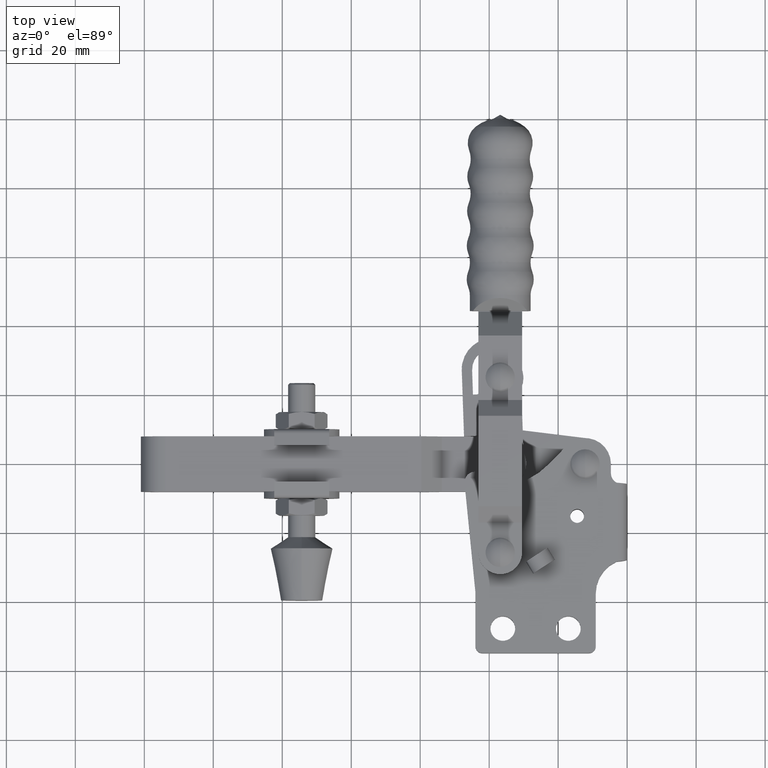
[diagram: clean part render]
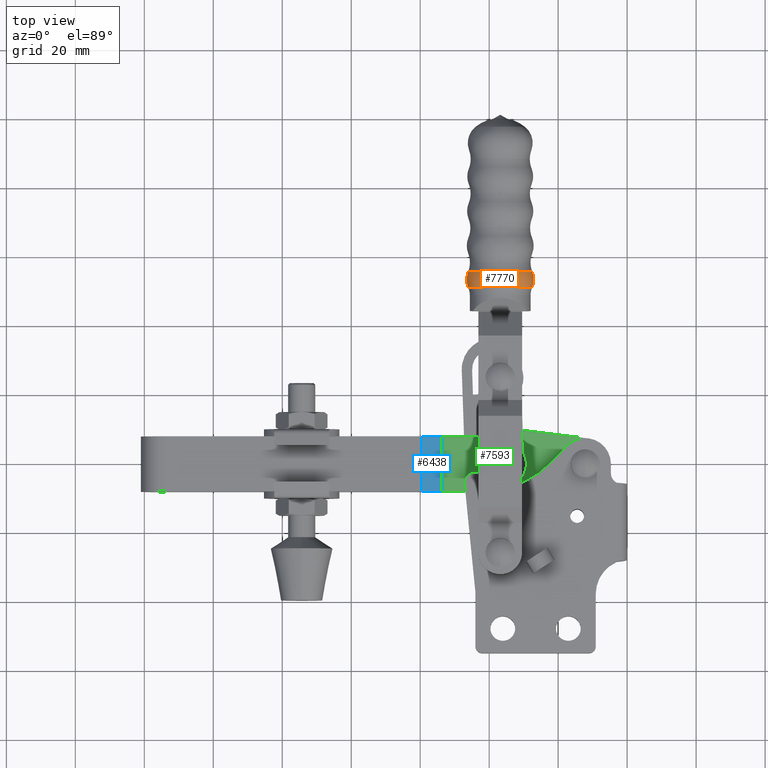
[diagram: same view with three faces highlighted in distinct colors, each labeled with its STEP entity id]
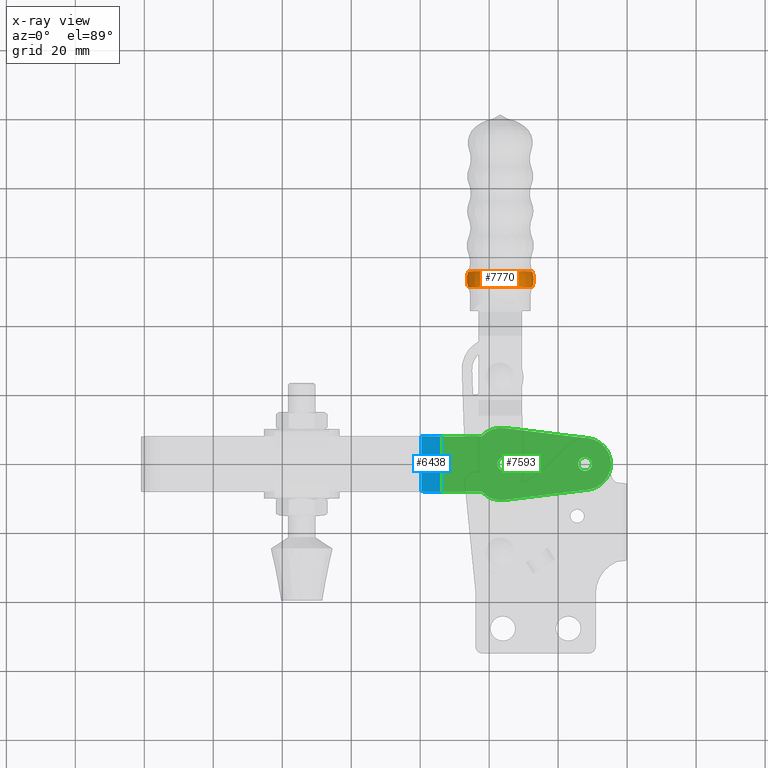
[diagram: x-ray of the same camera — body ghosted, the three highlighted faces saturated]
A machine part, top view with three faces highlighted in distinct colors.
The next image is the same camera in x-ray (body ghosted, the three faces saturated) — at least one of them is partly hidden behind the body in this view.
Their STEP definitions:

[orange] entity #7770 — the highlighted toroidal blend (fillet) surface has major radius 3.7204 mm and minor (blend) radius 6 mm.
#6 = ORIENTED_EDGE ( 'NONE', *, *, #4113, .F. ) ;
#67 = CIRCLE ( 'NONE', #2832, 5.999999999999956500 ) ;
#202 = VERTEX_POINT ( 'NONE', #4140 ) ;
#206 = CARTESIAN_POINT ( 'NONE',  ( -36.80000000000023900, 95.59518003022576200, -0.09999999999998945800 ) ) ;
#364 = DIRECTION ( 'NONE',  ( -1.224646799147353200E-016, -1.246487069854729000E-032, 1.000000000000000000 ) ) ;
#540 = CARTESIAN_POINT ( 'NONE',  ( -46.10422334448541900, 95.59518003022576200, -0.09999999999998945800 ) ) ;
#731 = EDGE_CURVE ( 'NONE', #1030, #9462, #7596, .T. ) ;
#931 = CIRCLE ( 'NONE', #11139, 5.999999999999956500 ) ;
#1030 = VERTEX_POINT ( 'NONE', #540 ) ;
#1149 = DIRECTION ( 'NONE',  ( -1.000000000000000000, 0.0000000000000000000, 0.0000000000000000000 ) ) ;
#1521 = CARTESIAN_POINT ( 'NONE',  ( -40.52035693382953200, 93.39963091714528800, -0.09999999999998945800 ) ) ;
#1606 = CARTESIAN_POINT ( 'NONE',  ( -36.80000000000023900, 91.10825214997900900, -0.09999999999998945800 ) ) ;
#1897 = TOROIDAL_SURFACE ( 'NONE', #2658, 3.720356933829293200, 5.999999999999956500 ) ;
#2094 = CARTESIAN_POINT ( 'NONE',  ( -27.49577665551507300, 95.59518003022576200, -0.09999999999998833400 ) ) ;
#2473 = ORIENTED_EDGE ( 'NONE', *, *, #6395, .T. ) ;
#2487 = DIRECTION ( 'NONE',  ( -1.000000000000000000, 0.0000000000000000000, 0.0000000000000000000 ) ) ;
#2506 = CARTESIAN_POINT ( 'NONE',  ( -36.80000000000023900, 93.39963091714528800, -0.09999999999998945800 ) ) ;
#2562 = DIRECTION ( 'NONE',  ( -1.000000000000000000, 0.0000000000000000000, 0.0000000000000000000 ) ) ;
#2658 = AXIS2_PLACEMENT_3D ( 'NONE', #2506, #5429, #12132 ) ;
#2791 = FACE_OUTER_BOUND ( 'NONE', #12000, .T. ) ;
#2832 = AXIS2_PLACEMENT_3D ( 'NONE', #6073, #364, #7040 ) ;
#4113 = EDGE_CURVE ( 'NONE', #202, #1030, #931, .T. ) ;
#4140 = CARTESIAN_POINT ( 'NONE',  ( -46.06558761842495600, 91.10825214997900900, -0.09999999999998945800 ) ) ;
#5429 = DIRECTION ( 'NONE',  ( -1.017833934423036900E-016, 1.000000000000000000, -0.0000000000000000000 ) ) ;
#6073 = CARTESIAN_POINT ( 'NONE',  ( -33.07964306617095200, 93.39963091714528800, -0.09999999999998900000 ) ) ;
#6395 = EDGE_CURVE ( 'NONE', #202, #7558, #9009, .T. ) ;
#6877 = DIRECTION ( 'NONE',  ( -1.017833934423036900E-016, 1.000000000000000000, -0.0000000000000000000 ) ) ;
#7040 = DIRECTION ( 'NONE',  ( 1.000000000000000000, 0.0000000000000000000, 1.219727444046201400E-016 ) ) ;
#7558 = VERTEX_POINT ( 'NONE', #8964 ) ;
#7596 = CIRCLE ( 'NONE', #12240, 9.304223344485169600 ) ;
#7770 = ADVANCED_FACE ( 'NONE', ( #2791 ), #1897, .T. ) ;
#8238 = DIRECTION ( 'NONE',  ( 0.0000000000000000000, -0.0000000000000000000, -1.000000000000000000 ) ) ;
#8330 = DIRECTION ( 'NONE',  ( -1.017833934423036900E-016, 1.000000000000000000, -0.0000000000000000000 ) ) ;
#8964 = CARTESIAN_POINT ( 'NONE',  ( -27.53441238157552800, 91.10825214997900900, -0.09999999999998832000 ) ) ;
#9009 = CIRCLE ( 'NONE', #11018, 9.265587618424712300 ) ;
#9428 = ORIENTED_EDGE ( 'NONE', *, *, #9834, .T. ) ;
#9462 = VERTEX_POINT ( 'NONE', #2094 ) ;
#9834 = EDGE_CURVE ( 'NONE', #7558, #9462, #67, .T. ) ;
#11018 = AXIS2_PLACEMENT_3D ( 'NONE', #1606, #8330, #2562 ) ;
#11139 = AXIS2_PLACEMENT_3D ( 'NONE', #1521, #8238, #2487 ) ;
#11489 = ORIENTED_EDGE ( 'NONE', *, *, #731, .F. ) ;
#12000 = EDGE_LOOP ( 'NONE', ( #2473, #9428, #11489, #6 ) ) ;
#12132 = DIRECTION ( 'NONE',  ( -1.000000000000000000, -1.017833934423036900E-016, 0.0000000000000000000 ) ) ;
#12240 = AXIS2_PLACEMENT_3D ( 'NONE', #206, #6877, #1149 ) ;

[blue] entity #6438 — the highlighted planar face has unit normal (-0.5689, 0, -0.8224).
#703 = EDGE_LOOP ( 'NONE', ( #5776, #5069, #2581, #11402 ) ) ;
#724 = DIRECTION ( 'NONE',  ( 0.8224388460565610300, -1.860948410379638000E-015, -0.5688535351891137500 ) ) ;
#1522 = CARTESIAN_POINT ( 'NONE',  ( -59.71358415852468200, 47.80000000000014600, 7.149999999999992400 ) ) ;
#1860 = CARTESIAN_POINT ( 'NONE',  ( -53.71358415852445500, 29.30000000000005000, 2.999999999999863700 ) ) ;
#1896 = DIRECTION ( 'NONE',  ( 2.264898338322218800E-015, 1.000000000000000000, 3.150134990220453800E-018 ) ) ;
#2161 = DIRECTION ( 'NONE',  ( 2.264898338322218800E-015, 1.000000000000000000, 3.150134990220453800E-018 ) ) ;
#2352 = CARTESIAN_POINT ( 'NONE',  ( -59.71358415852476000, 31.80000000000000800, 7.150000000000229500 ) ) ;
#2546 = VERTEX_POINT ( 'NONE', #10721 ) ;
#2581 = ORIENTED_EDGE ( 'NONE', *, *, #5689, .F. ) ;
#2750 = LINE ( 'NONE', #1522, #5015 ) ;
#3343 = VERTEX_POINT ( 'NONE', #11751 ) ;
#3394 = VECTOR ( 'NONE', #2161, 1000.000000000000000 ) ;
#4188 = VECTOR ( 'NONE', #6842, 1000.000000000000000 ) ;
#4329 = AXIS2_PLACEMENT_3D ( 'NONE', #9299, #6397, #724 ) ;
#4553 = CARTESIAN_POINT ( 'NONE',  ( -59.71358415852473200, 47.80000000000014600, 7.150000000000229500 ) ) ;
#5015 = VECTOR ( 'NONE', #9218, 1000.000000000000000 ) ;
#5056 = VECTOR ( 'NONE', #1896, 1000.000000000000000 ) ;
#5069 = ORIENTED_EDGE ( 'NONE', *, *, #8181, .F. ) ;
#5213 = FACE_OUTER_BOUND ( 'NONE', #703, .T. ) ;
#5689 = EDGE_CURVE ( 'NONE', #2546, #11067, #9317, .T. ) ;
#5776 = ORIENTED_EDGE ( 'NONE', *, *, #9973, .F. ) ;
#5885 = CARTESIAN_POINT ( 'NONE',  ( -59.71358415852474600, 31.80000000000000800, 7.150000000000010100 ) ) ;
#6397 = DIRECTION ( 'NONE',  ( -0.5688535351891137500, 1.290986219984822700E-015, -0.8224388460565610300 ) ) ;
#6438 = ADVANCED_FACE ( 'NONE', ( #5213 ), #6448, .F. ) ;
#6448 = PLANE ( 'NONE',  #4329 ) ;
#6842 = DIRECTION ( 'NONE',  ( -0.8224388460565610300, -1.027402259397038600E-016, 0.5688535351891137500 ) ) ;
#7613 = LINE ( 'NONE', #1860, #5056 ) ;
#8181 = EDGE_CURVE ( 'NONE', #11067, #9477, #8838, .T. ) ;
#8594 = EDGE_CURVE ( 'NONE', #2546, #3343, #7613, .T. ) ;
#8838 = LINE ( 'NONE', #8896, #3394 ) ;
#8896 = CARTESIAN_POINT ( 'NONE',  ( -59.71358415852474600, 29.30000000000006500, 7.150000000000008300 ) ) ;
#9218 = DIRECTION ( 'NONE',  ( 0.8224388460565610300, -3.355373218166783600E-015, -0.5688535351891137500 ) ) ;
#9299 = CARTESIAN_POINT ( 'NONE',  ( -59.71358415852474600, 29.30000000000006500, 7.150000000000008300 ) ) ;
#9317 = LINE ( 'NONE', #5885, #4188 ) ;
#9477 = VERTEX_POINT ( 'NONE', #4553 ) ;
#9973 = EDGE_CURVE ( 'NONE', #9477, #3343, #2750, .T. ) ;
#10721 = CARTESIAN_POINT ( 'NONE',  ( -53.71358415852445500, 31.80000000000000800, 2.999999999999863700 ) ) ;
#11067 = VERTEX_POINT ( 'NONE', #2352 ) ;
#11402 = ORIENTED_EDGE ( 'NONE', *, *, #8594, .T. ) ;
#11751 = CARTESIAN_POINT ( 'NONE',  ( -53.71358415852441200, 47.80000000000012500, 2.999999999999863700 ) ) ;

[green] entity #7593 — the highlighted planar face has unit normal (0, 0, -1).
#132 = DIRECTION ( 'NONE',  ( 0.9925261778147186400, -0.1220319071083695300, 6.834952235825854500E-015 ) ) ;
#258 = EDGE_LOOP ( 'NONE', ( #6495, #7268 ) ) ;
#299 = CARTESIAN_POINT ( 'NONE',  ( -35.68476069668722100, 29.35605366638959500, 3.000000000000055100 ) ) ;
#320 = ORIENTED_EDGE ( 'NONE', *, *, #8184, .T. ) ;
#356 = LINE ( 'NONE', #6440, #7717 ) ;
#407 = VERTEX_POINT ( 'NONE', #3452 ) ;
#569 = ORIENTED_EDGE ( 'NONE', *, *, #3531, .T. ) ;
#734 = CARTESIAN_POINT ( 'NONE',  ( -4.700000000000008200, 39.79999999999993300, 3.000000000000200700 ) ) ;
#864 = LINE ( 'NONE', #2957, #10772 ) ;
#1235 = CARTESIAN_POINT ( 'NONE',  ( -12.19999999999998900, 39.79999999999994700, 3.000000000000149200 ) ) ;
#1302 = FACE_BOUND ( 'NONE', #258, .T. ) ;
#1440 = LINE ( 'NONE', #6363, #3385 ) ;
#1533 = EDGE_CURVE ( 'NONE', #3343, #8870, #10324, .T. ) ;
#1613 = AXIS2_PLACEMENT_3D ( 'NONE', #3208, #4182, #10895 ) ;
#1670 = EDGE_CURVE ( 'NONE', #7920, #11570, #1440, .T. ) ;
#1735 = CARTESIAN_POINT ( 'NONE',  ( -12.19999999999998900, 39.79999999999994700, 3.000000000000149200 ) ) ;
#1860 = CARTESIAN_POINT ( 'NONE',  ( -53.71358415852445500, 29.30000000000005000, 2.999999999999863700 ) ) ;
#1895 = DIRECTION ( 'NONE',  ( -0.9925261778147190800, -0.1220319071083650300, -6.835721069786865900E-015 ) ) ;
#1896 = DIRECTION ( 'NONE',  ( 2.264898338322218800E-015, 1.000000000000000000, 3.150134990220453800E-018 ) ) ;
#1944 = CARTESIAN_POINT ( 'NONE',  ( -36.59999999999998000, 36.79999999999999700, 2.999999999999980900 ) ) ;
#1995 = EDGE_CURVE ( 'NONE', #2808, #7920, #9103, .T. ) ;
#2016 = EDGE_CURVE ( 'NONE', #11570, #11504, #6515, .T. ) ;
#2200 = DIRECTION ( 'NONE',  ( 1.000000000000000000, -3.469446951953614200E-015, 6.938893903907228400E-015 ) ) ;
#2546 = VERTEX_POINT ( 'NONE', #10721 ) ;
#2689 = DIRECTION ( 'NONE',  ( 1.000000000000000000, -1.850371707708599100E-015, 6.881069788041352700E-015 ) ) ;
#2709 = CARTESIAN_POINT ( 'NONE',  ( -10.19999999999998900, 39.79999999999994000, 3.000000000000163000 ) ) ;
#2808 = VERTEX_POINT ( 'NONE', #734 ) ;
#2904 = DIRECTION ( 'NONE',  ( 1.000000000000000000, -1.850371707708590800E-015, 6.881069788041322700E-015 ) ) ;
#2957 = CARTESIAN_POINT ( 'NONE',  ( -50.90837487469222800, 52.11570217516838700, 2.999999999999882300 ) ) ;
#3052 = DIRECTION ( 'NONE',  ( 1.000000000000000000, -4.081963296954256900E-015, 6.886807426939579500E-015 ) ) ;
#3114 = CARTESIAN_POINT ( 'NONE',  ( -14.19999999999998900, 39.79999999999995500, 3.000000000000135400 ) ) ;
#3208 = CARTESIAN_POINT ( 'NONE',  ( -53.71358415852445500, 29.30000000000005000, 2.999999999999863700 ) ) ;
#3217 = EDGE_CURVE ( 'NONE', #407, #6620, #3921, .T. ) ;
#3316 = VERTEX_POINT ( 'NONE', #3114 ) ;
#3332 = ORIENTED_EDGE ( 'NONE', *, *, #11840, .F. ) ;
#3343 = VERTEX_POINT ( 'NONE', #11751 ) ;
#3385 = VECTOR ( 'NONE', #1895, 1000.000000000000100 ) ;
#3452 = CARTESIAN_POINT ( 'NONE',  ( -33.59999999999996600, 39.79999999999999700, 3.000000000000002200 ) ) ;
#3531 = EDGE_CURVE ( 'NONE', #3316, #9527, #12006, .T. ) ;
#3910 = ORIENTED_EDGE ( 'NONE', *, *, #1533, .F. ) ;
#3921 = CIRCLE ( 'NONE', #10820, 2.000000000000001800 ) ;
#4082 = CARTESIAN_POINT ( 'NONE',  ( -42.19016994374941000, 47.80000000000004700, 2.999999999999913400 ) ) ;
#4112 = AXIS2_PLACEMENT_3D ( 'NONE', #1235, #7946, #2200 ) ;
#4173 = EDGE_LOOP ( 'NONE', ( #320, #569 ) ) ;
#4182 = DIRECTION ( 'NONE',  ( 6.886807426939579500E-015, 3.150134990204894600E-018, -1.000000000000000000 ) ) ;
#4708 = DIRECTION ( 'NONE',  ( 6.886807426939579500E-015, 3.150134990204894600E-018, -1.000000000000000000 ) ) ;
#4799 = DIRECTION ( 'NONE',  ( 6.886807426939579500E-015, 3.150134990204894600E-018, -1.000000000000000000 ) ) ;
#4869 = ORIENTED_EDGE ( 'NONE', *, *, #11285, .F. ) ;
#4923 = CIRCLE ( 'NONE', #8536, 2.000000000000001800 ) ;
#4946 = DIRECTION ( 'NONE',  ( 6.886807426939579500E-015, 3.150134990204894600E-018, -1.000000000000000000 ) ) ;
#4992 = ORIENTED_EDGE ( 'NONE', *, *, #6477, .F. ) ;
#4999 = CARTESIAN_POINT ( 'NONE',  ( -42.19016994374949500, 31.80000000000000800, 3.000000000000014700 ) ) ;
#5008 = AXIS2_PLACEMENT_3D ( 'NONE', #1735, #8458, #2689 ) ;
#5056 = VECTOR ( 'NONE', #1896, 1000.000000000000000 ) ;
#5283 = CARTESIAN_POINT ( 'NONE',  ( -12.19999999999998900, 39.79999999999994700, 3.000000000000149200 ) ) ;
#5393 = AXIS2_PLACEMENT_3D ( 'NONE', #10558, #4799, #11512 ) ;
#5511 = DIRECTION ( 'NONE',  ( 6.886807426939579500E-015, 3.150134990204894600E-018, -1.000000000000000000 ) ) ;
#5578 = ORIENTED_EDGE ( 'NONE', *, *, #1670, .F. ) ;
#5816 = ORIENTED_EDGE ( 'NONE', *, *, #8594, .F. ) ;
#5910 = EDGE_LOOP ( 'NONE', ( #3910, #5816, #4869, #9363, #5578, #9018, #4992, #9883, #3332 ) ) ;
#5944 = CIRCLE ( 'NONE', #4112, 2.000000000000000000 ) ;
#6051 = AXIS2_PLACEMENT_3D ( 'NONE', #5283, #11985, #6223 ) ;
#6223 = DIRECTION ( 'NONE',  ( 1.000000000000000000, -3.469446951953614200E-015, 6.938893903907228400E-015 ) ) ;
#6363 = CARTESIAN_POINT ( 'NONE',  ( -53.45189198370015000, 27.17157031142903300, 2.999999999999865000 ) ) ;
#6382 = FACE_BOUND ( 'NONE', #4173, .T. ) ;
#6440 = CARTESIAN_POINT ( 'NONE',  ( -53.71358415852445500, 31.80000000000000800, 2.999999999999863700 ) ) ;
#6477 = EDGE_CURVE ( 'NONE', #11543, #2808, #7477, .T. ) ;
#6495 = ORIENTED_EDGE ( 'NONE', *, *, #3217, .T. ) ;
#6515 = CIRCLE ( 'NONE', #6677, 7.500000000000013300 ) ;
#6620 = VERTEX_POINT ( 'NONE', #9543 ) ;
#6677 = AXIS2_PLACEMENT_3D ( 'NONE', #1944, #8679, #2904 ) ;
#6853 = CARTESIAN_POINT ( 'NONE',  ( -53.71358415852438400, 47.80000000000012500, 2.999999999999863700 ) ) ;
#7268 = ORIENTED_EDGE ( 'NONE', *, *, #7397, .T. ) ;
#7397 = EDGE_CURVE ( 'NONE', #6620, #407, #4923, .T. ) ;
#7448 = EDGE_CURVE ( 'NONE', #9318, #11543, #864, .T. ) ;
#7477 = CIRCLE ( 'NONE', #5008, 7.499999999999980500 ) ;
#7534 = AXIS2_PLACEMENT_3D ( 'NONE', #10689, #4946, #11639 ) ;
#7593 = ADVANCED_FACE ( 'NONE', ( #1302, #6382, #8994 ), #9003, .F. ) ;
#7613 = LINE ( 'NONE', #1860, #5056 ) ;
#7717 = VECTOR ( 'NONE', #10292, 1000.000000000000000 ) ;
#7766 = VECTOR ( 'NONE', #3052, 1000.000000000000000 ) ;
#7920 = VERTEX_POINT ( 'NONE', #10483 ) ;
#7946 = DIRECTION ( 'NONE',  ( 6.886807426939579500E-015, 3.150134990204894600E-018, -1.000000000000000000 ) ) ;
#8184 = EDGE_CURVE ( 'NONE', #9527, #3316, #5944, .T. ) ;
#8442 = CIRCLE ( 'NONE', #7534, 7.500000000000007100 ) ;
#8458 = DIRECTION ( 'NONE',  ( 6.886807426939579500E-015, 3.150134990204894600E-018, -1.000000000000000000 ) ) ;
#8536 = AXIS2_PLACEMENT_3D ( 'NONE', #10456, #4708, #11404 ) ;
#8577 = CARTESIAN_POINT ( 'NONE',  ( -35.68476069668716400, 50.24394633361034600, 3.000000000000024000 ) ) ;
#8594 = EDGE_CURVE ( 'NONE', #2546, #3343, #7613, .T. ) ;
#8679 = DIRECTION ( 'NONE',  ( 6.886807426939579500E-015, 3.150134990204894600E-018, -1.000000000000000000 ) ) ;
#8870 = VERTEX_POINT ( 'NONE', #4082 ) ;
#8994 = FACE_OUTER_BOUND ( 'NONE', #5910, .T. ) ;
#9003 = PLANE ( 'NONE',  #1613 ) ;
#9018 = ORIENTED_EDGE ( 'NONE', *, *, #1995, .F. ) ;
#9103 = CIRCLE ( 'NONE', #5393, 7.499999999999980500 ) ;
#9318 = VERTEX_POINT ( 'NONE', #8577 ) ;
#9363 = ORIENTED_EDGE ( 'NONE', *, *, #2016, .F. ) ;
#9527 = VERTEX_POINT ( 'NONE', #2709 ) ;
#9543 = CARTESIAN_POINT ( 'NONE',  ( -37.59999999999996600, 39.80000000000001100, 2.999999999999974700 ) ) ;
#9883 = ORIENTED_EDGE ( 'NONE', *, *, #7448, .F. ) ;
#10292 = DIRECTION ( 'NONE',  ( -1.000000000000000000, -1.227425735034547700E-016, -6.886807426939579500E-015 ) ) ;
#10324 = LINE ( 'NONE', #6853, #7766 ) ;
#10456 = CARTESIAN_POINT ( 'NONE',  ( -35.59999999999996600, 39.80000000000000400, 2.999999999999988500 ) ) ;
#10483 = CARTESIAN_POINT ( 'NONE',  ( -11.28476069668722700, 32.35605366638954900, 3.000000000000155400 ) ) ;
#10558 = CARTESIAN_POINT ( 'NONE',  ( -12.19999999999998900, 39.79999999999994700, 3.000000000000149200 ) ) ;
#10689 = CARTESIAN_POINT ( 'NONE',  ( -36.59999999999996600, 42.80000000000000400, 2.999999999999980900 ) ) ;
#10721 = CARTESIAN_POINT ( 'NONE',  ( -53.71358415852445500, 31.80000000000000800, 2.999999999999863700 ) ) ;
#10772 = VECTOR ( 'NONE', #132, 999.9999999999998900 ) ;
#10820 = AXIS2_PLACEMENT_3D ( 'NONE', #11276, #5511, #12231 ) ;
#10895 = DIRECTION ( 'NONE',  ( 1.000000000000000000, -2.264898338322218800E-015, 6.886807426939579500E-015 ) ) ;
#11276 = CARTESIAN_POINT ( 'NONE',  ( -35.59999999999996600, 39.80000000000000400, 2.999999999999988500 ) ) ;
#11285 = EDGE_CURVE ( 'NONE', #11504, #2546, #356, .T. ) ;
#11404 = DIRECTION ( 'NONE',  ( 1.000000000000000000, -3.469446951953611000E-015, 6.938893903907222100E-015 ) ) ;
#11504 = VERTEX_POINT ( 'NONE', #4999 ) ;
#11512 = DIRECTION ( 'NONE',  ( 1.000000000000000000, -1.850371707708599100E-015, 6.881069788041352700E-015 ) ) ;
#11543 = VERTEX_POINT ( 'NONE', #11732 ) ;
#11570 = VERTEX_POINT ( 'NONE', #299 ) ;
#11639 = DIRECTION ( 'NONE',  ( 1.000000000000000000, -1.850371707708592400E-015, 6.881069788041328200E-015 ) ) ;
#11732 = CARTESIAN_POINT ( 'NONE',  ( -11.28476069668719500, 47.24394633361028900, 3.000000000000091500 ) ) ;
#11751 = CARTESIAN_POINT ( 'NONE',  ( -53.71358415852441200, 47.80000000000012500, 2.999999999999863700 ) ) ;
#11840 = EDGE_CURVE ( 'NONE', #8870, #9318, #8442, .T. ) ;
#11985 = DIRECTION ( 'NONE',  ( 6.886807426939579500E-015, 3.150134990204894600E-018, -1.000000000000000000 ) ) ;
#12006 = CIRCLE ( 'NONE', #6051, 2.000000000000000000 ) ;
#12231 = DIRECTION ( 'NONE',  ( 1.000000000000000000, -3.469446951953611000E-015, 6.938893903907222100E-015 ) ) ;